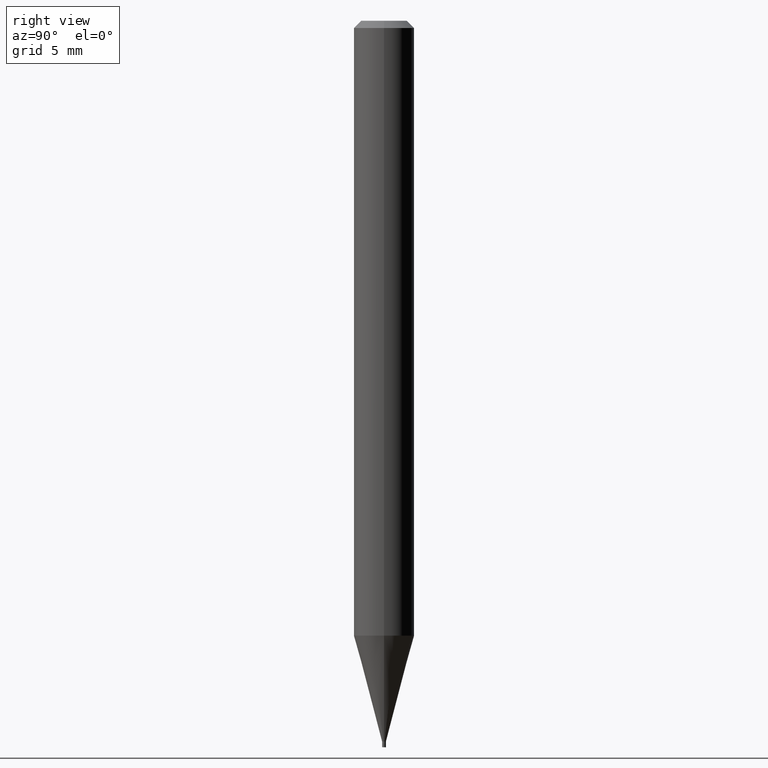
[diagram: clean part render]
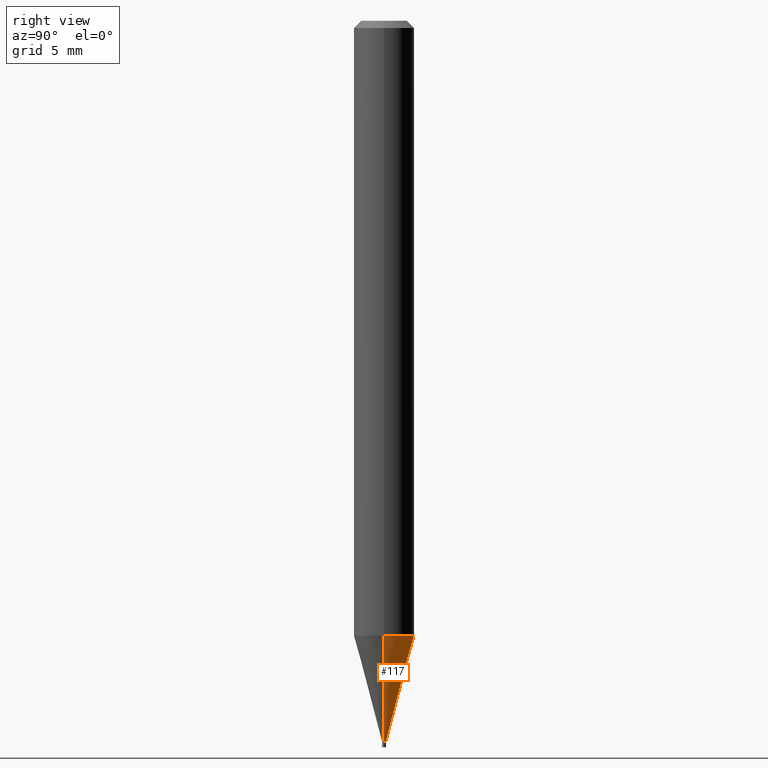
[diagram: same view with one face highlighted and labeled with its STEP entity id]
A machine part, right view. The second image highlights one B-rep face of the part: STEP entity #117.
In plain terms, the highlighted conical surface has half-angle 15 deg.
Its self-contained STEP definition (entity closure, byte-faithful):
#3 = CIRCLE ( 'NONE', #250, 0.06250000000000000000 ) ;
#4 = EDGE_LOOP ( 'NONE', ( #72, #270, #368, #363 ) ) ;
#11 = FACE_OUTER_BOUND ( 'NONE', #4, .T. ) ;
#15 = VERTEX_POINT ( 'NONE', #269 ) ;
#22 = CIRCLE ( 'NONE', #191, 0.003999999999999648802 ) ;
#28 = CARTESIAN_POINT ( 'NONE',  ( -0.003999999999999648802, -4.577929989363811904E-15, -1.487999999999999989 ) ) ;
#32 = EDGE_CURVE ( 'NONE', #382, #118, #224, .T. ) ;
#51 = DIRECTION ( 'NONE',  ( 1.000000000000000000, -6.982962677686217801E-15, 0.000000000000000000 ) ) ;
#56 = CARTESIAN_POINT ( 'NONE',  ( -0.06249999999999997918, -3.988957455959424172E-15, -1.269675027757220187 ) ) ;
#72 = ORIENTED_EDGE ( 'NONE', *, *, #162, .T. ) ;
#117 = ADVANCED_FACE ( 'NONE', ( #11 ), #430, .T. ) ;
#118 = VERTEX_POINT ( 'NONE', #56 ) ;
#132 = DIRECTION ( 'NONE',  ( -2.445468806185136597E-29, 3.491481338843145583E-15, 1.000000000000000000 ) ) ;
#158 = CARTESIAN_POINT ( 'NONE',  ( -0.003999999999999648802, -5.166902522768199636E-15, -1.487999999999999989 ) ) ;
#162 = EDGE_CURVE ( 'NONE', #15, #382, #22, .T. ) ;
#171 = DIRECTION ( 'NONE',  ( 1.000000000000000000, -6.982962677686262766E-15, 0.000000000000000000 ) ) ;
#191 = AXIS2_PLACEMENT_3D ( 'NONE', #424, #276, #460 ) ;
#224 = LINE ( 'NONE', #158, #449 ) ;
#249 = DIRECTION ( 'NONE',  ( 0.2588190451025214611, 1.565188264969621573E-15, 0.9659258262890682012 ) ) ;
#250 = AXIS2_PLACEMENT_3D ( 'NONE', #428, #132, #171 ) ;
#269 = CARTESIAN_POINT ( 'NONE',  ( 0.003999999999999648802, -5.223256082909342993E-15, -1.487999999999999989 ) ) ;
#270 = ORIENTED_EDGE ( 'NONE', *, *, #32, .T. ) ;
#276 = DIRECTION ( 'NONE',  ( -2.445468806185136597E-29, 3.491481338843145583E-15, 1.000000000000000000 ) ) ;
#292 = AXIS2_PLACEMENT_3D ( 'NONE', #345, #381, #51 ) ;
#303 = DIRECTION ( 'NONE',  ( -0.2588190451025214611, 5.211531920934551042E-15, 0.9659258262890682012 ) ) ;
#345 = CARTESIAN_POINT ( 'NONE',  ( 3.638857583603483825E-29, -5.195324232198600513E-15, -1.487999999999999989 ) ) ;
#363 = ORIENTED_EDGE ( 'NONE', *, *, #415, .F. ) ;
#368 = ORIENTED_EDGE ( 'NONE', *, *, #380, .F. ) ;
#380 = EDGE_CURVE ( 'NONE', #435, #118, #3, .T. ) ;
#381 = DIRECTION ( 'NONE',  ( -2.445468806185136597E-29, 3.491481338843145583E-15, 1.000000000000000000 ) ) ;
#382 = VERTEX_POINT ( 'NONE', #28 ) ;
#396 = VECTOR ( 'NONE', #249, 39.37007874015747433 ) ;
#398 = CARTESIAN_POINT ( 'NONE',  ( 0.06249999999999997918, -4.869481833164877669E-15, -1.269675027757220187 ) ) ;
#415 = EDGE_CURVE ( 'NONE', #15, #435, #456, .T. ) ;
#424 = CARTESIAN_POINT ( 'NONE',  ( 3.638857583603483825E-29, -5.195324232198600513E-15, -1.487999999999999989 ) ) ;
#428 = CARTESIAN_POINT ( 'NONE',  ( 3.104950674372529160E-29, -4.433046665809486788E-15, -1.269675027757220187 ) ) ;
#430 = CONICAL_SURFACE ( 'NONE', #292, 0.003999999999999648802, 0.2617993877991501295 ) ;
#435 = VERTEX_POINT ( 'NONE', #398 ) ;
#449 = VECTOR ( 'NONE', #303, 39.37007874015747433 ) ;
#456 = LINE ( 'NONE', #465, #396 ) ;
#460 = DIRECTION ( 'NONE',  ( 1.000000000000000000, -6.982962677686217801E-15, 0.000000000000000000 ) ) ;
#465 = CARTESIAN_POINT ( 'NONE',  ( 0.003999999999999648802, -5.223256082909342993E-15, -1.487999999999999989 ) ) ;